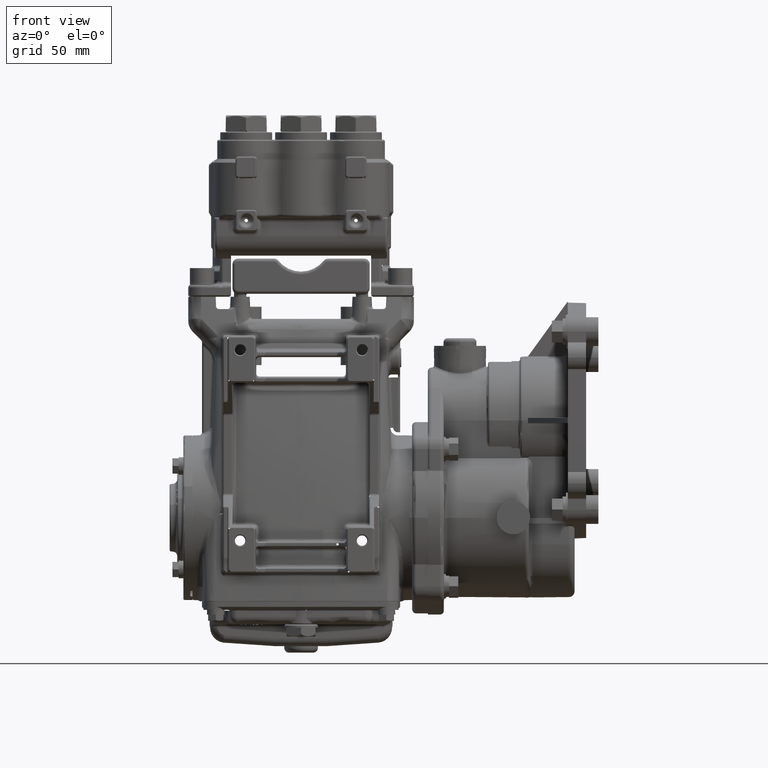
[diagram: clean part render]
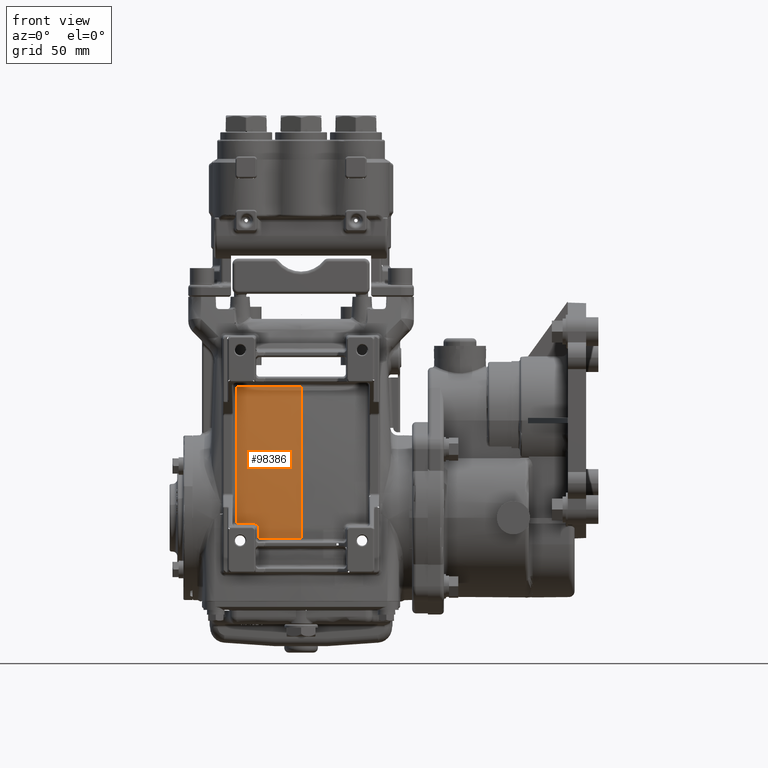
[diagram: same view with one face highlighted and labeled with its STEP entity id]
A machine part, front view. The second image highlights one B-rep face of the part: STEP entity #98386.
In plain terms, the highlighted face is a freeform B-spline surface patch.
Its self-contained STEP definition (entity closure, byte-faithful):
#421 = CARTESIAN_POINT ( 'NONE',  ( -1.438329920831149300, -2.368889522099581146, -2.165354330708661124 ) ) ;
#1658 = CARTESIAN_POINT ( 'NONE',  ( -2.913385843901003192, -1.691985680221069988, 3.127925920230766099 ) ) ;
#3141 = CARTESIAN_POINT ( 'NONE',  ( -0.2775766395478562742, -1.793953827746439966, 3.388778490940969945 ) ) ;
#5921 = CARTESIAN_POINT ( 'NONE',  ( -1.189792242981691395, -2.238631070579994109, -0.1583026045091741885 ) ) ;
#6065 = CARTESIAN_POINT ( 'NONE',  ( 2.189576524486962494, -2.325080261920545954, -2.165354330708661568 ) ) ;
#6384 = EDGE_CURVE ( 'NONE', #45389, #88729, #108775, .T. ) ;
#7301 = CARTESIAN_POINT ( 'NONE',  ( 2.279253307875170886, -1.782954428840536565, 3.127925920230772761 ) ) ;
#7557 = ORIENTED_EDGE ( 'NONE', *, *, #24498, .F. ) ;
#7912 = CARTESIAN_POINT ( 'NONE',  ( -1.523571933390371225, -1.864023738764603477, 3.127925920230739010 ) ) ;
#8499 = CARTESIAN_POINT ( 'NONE',  ( 0.7520193225572906481, -2.393118508680737833, -2.165354330708661568 ) ) ;
#9092 = CARTESIAN_POINT ( 'NONE',  ( 0.7686644455069936432, -2.282642455870154130, 0.4897784465330022319 ) ) ;
#9689 = CARTESIAN_POINT ( 'NONE',  ( -0.4802293617885408650, -2.293642939336622888, 0.4897784465330087822 ) ) ;
#10284 = CARTESIAN_POINT ( 'NONE',  ( -2.326410604817644057, -1.776570720899579792, 3.127925920230754109 ) ) ;
#10909 = CARTESIAN_POINT ( 'NONE',  ( -2.913385826771654141, -2.265344068576858216, -2.165354330708661124 ) ) ;
#11753 = CARTESIAN_POINT ( 'NONE',  ( -4.438784194610900819E-16, -2.306496805849697296, -0.5440526558611742391 ) ) ;
#12698 = CARTESIAN_POINT ( 'NONE',  ( -1.527915027197057851, -2.215913157812104295, -0.1499813333665312720 ) ) ;
#12725 = VERTEX_POINT ( 'NONE', #57937 ) ;
#14106 = CARTESIAN_POINT ( 'NONE',  ( 2.523490070267367269, -1.223445930611730459, 5.708661417322837828 ) ) ;
#14454 = CARTESIAN_POINT ( 'NONE',  ( -3.880358019103940263E-16, -1.793953829572055847, 3.388778491068083820 ) ) ;
#14719 = ORIENTED_EDGE ( 'NONE', *, *, #101387, .F. ) ;
#15706 = EDGE_CURVE ( 'NONE', #53317, #44997, #83028, .T. ) ;
#15954 = CARTESIAN_POINT ( 'NONE',  ( -1.084082905692057119, -2.260424564412967463, -0.3341032687350067865 ) ) ;
#16569 = CARTESIAN_POINT ( 'NONE',  ( 2.663295530942337397, -2.288034568519342837, -2.165354330708661568 ) ) ;
#16857 = CARTESIAN_POINT ( 'NONE',  ( -1.664976883656835716, -1.831649929826981715, 2.801814109386677742 ) ) ;
#17187 = CARTESIAN_POINT ( 'NONE',  ( -0.7760523888099777334, -2.282663781206307085, 0.4897784465330197179 ) ) ;
#17783 = CARTESIAN_POINT ( 'NONE',  ( -0.4731394191495167378, -2.398237061164401940, -2.165354330708661568 ) ) ;
#18385 = CARTESIAN_POINT ( 'NONE',  ( -1.964095400574094485, -1.820132787096655713, 3.127925920230754109 ) ) ;
#18991 = CARTESIAN_POINT ( 'NONE',  ( -0.2386529819870311930, -2.400899943846322770, -2.165354330708661568 ) ) ;
#19595 = CARTESIAN_POINT ( 'NONE',  ( -0.7593239362273180859, -2.393134938270132572, -2.165354330708661568 ) ) ;
#19842 = CARTESIAN_POINT ( 'NONE',  ( -1.084498845193367922, -2.278379151644223111, -0.5438560755862406060 ) ) ;
#24498 = EDGE_CURVE ( 'NONE', #64485, #45389, #38413, .T. ) ;
#25077 = CARTESIAN_POINT ( 'NONE',  ( -1.099710183924679008, -2.250997816146372177, -0.2380024238543103632 ) ) ;
#25215 = CARTESIAN_POINT ( 'NONE',  ( 1.648668314213679542, -2.215500870424770952, 0.4897784465330115022 ) ) ;
#25815 = CARTESIAN_POINT ( 'NONE',  ( 2.414281635307335083, -2.308400903803342619, -2.165354330708661568 ) ) ;
#26290 = CARTESIAN_POINT ( 'NONE',  ( -1.240444894278595944, -2.234850677969940413, -0.1501769756821681734 ) ) ;
#26428 = CARTESIAN_POINT ( 'NONE',  ( -2.476352911878942020, -2.114609130722289176, 0.4897784465330224379 ) ) ;
#27044 = CARTESIAN_POINT ( 'NONE',  ( 0.4056649939589591081, -1.297898323476696980, 5.708661417322884901 ) ) ;
#27641 = CARTESIAN_POINT ( 'NONE',  ( -0.4873200862093268193, -1.924545779200158346, 3.127925920230743451 ) ) ;
#28246 = CARTESIAN_POINT ( 'NONE',  ( 1.062078202322136677, -2.384053432892072166, -2.165354330708661568 ) ) ;
#28875 = CARTESIAN_POINT ( 'NONE',  ( 0.7853088048963520196, -1.913828282296069494, 3.127925920230730128 ) ) ;
#30683 = CARTESIAN_POINT ( 'NONE',  ( -2.913385826771652809, -1.197969208711458178, 5.708661417322836940 ) ) ;
#32660 = CARTESIAN_POINT ( 'NONE',  ( 2.037265628463426737, -2.172062645620671084, 0.4897784465330257131 ) ) ;
#33262 = CARTESIAN_POINT ( 'NONE',  ( 1.345329668388606015, -2.372960332906651093, -2.165354330708661568 ) ) ;
#33732 = CARTESIAN_POINT ( 'NONE',  ( -1.219837589830072178, -2.236194069783405070, -0.1512179920518048892 ) ) ;
#34495 = CARTESIAN_POINT ( 'NONE',  ( -1.084188063796198698, -2.265038599171059541, -0.3869418781655847295 ) ) ;
#34624 = CARTESIAN_POINT ( 'NONE',  ( 4.617795276269186160E-16, -2.280336022690061970, -0.2144450474789922623 ) ) ;
#35727 = CARTESIAN_POINT ( 'NONE',  ( -1.648708095812247754, -2.358238290425402450, -2.165354330708661124 ) ) ;
#35892 = B_SPLINE_CURVE_WITH_KNOTS ( 'NONE', 3,
 ( #120967, #45466, #73338, #120367, #93123, #25077, #101181, #43011, #54136, #80829, #64053, #44252, #118528, #5921, #63429, #33732, #71504, #26290 ),
 .UNSPECIFIED., .F., .F.,
 ( 4, 2, 2, 2, 2, 2, 2, 2, 4 ),
 ( 0.000000000000000000, 0.0007886128827416664976, 0.001577225765483332995, 0.002365838648224999601, 0.003154451530966665990, 0.003943064413708332813, 0.004731677296449999202, 0.005520290179191665592, 0.006308903061933331981 ),
 .UNSPECIFIED. ) ;
#36337 = CARTESIAN_POINT ( 'NONE',  ( -1.742463560137305301, -1.843263351871661904, 3.127925920230746559 ) ) ;
#36955 = CARTESIAN_POINT ( 'NONE',  ( 0.4014957656440683587, -1.927885586440233778, 3.127925920230790080 ) ) ;
#37555 = CARTESIAN_POINT ( 'NONE',  ( -1.161614335099258266, -1.892574789840514082, 3.127925920230770540 ) ) ;
#38168 = CARTESIAN_POINT ( 'NONE',  ( -1.915486056463429509, -2.186527716124487153, 0.4897784465330153325 ) ) ;
#38413 = B_SPLINE_CURVE_WITH_KNOTS ( 'NONE', 3,
 ( #64491, #44068, #122004, #93557, #16857, #45894 ),
 .UNSPECIFIED., .F., .F.,
 ( 4, 2, 4 ),
 ( 0.000000000000000000, 0.04535818248946323072, 0.09071636497892646145 ),
 .UNSPECIFIED. ) ;
#39369 = CARTESIAN_POINT ( 'NONE',  ( -2.729947521028413426, -1.210496205736398601, 5.708661417322848486 ) ) ;
#40487 = B_SPLINE_CURVE_WITH_KNOTS ( 'NONE', 3,
 ( #43766, #81588, #64200, #34495, #110000, #15954, #82199 ),
 .UNSPECIFIED., .F., .F.,
 ( 4, 3, 4 ),
 ( 1.734723475976807094E-18, 0.004000006667516224981, 0.006020819402372753343 ),
 .UNSPECIFIED. ) ;
#40601 = CARTESIAN_POINT ( 'NONE',  ( -2.848460234453432882, -2.059014184365170586, 0.4897784465330218828 ) ) ;
#41638 = CARTESIAN_POINT ( 'NONE',  ( -1.663672434191497240, -1.730195569268732747, 3.388363233297321475 ) ) ;
#42472 = ORIENTED_EDGE ( 'NONE', *, *, #84805, .F. ) ;
#42561 = CARTESIAN_POINT ( 'NONE',  ( 1.895214259565355164, -1.827571154474286530, 3.127925920230762102 ) ) ;
#42671 = VERTEX_POINT ( 'NONE', #109553 ) ;
#43011 = CARTESIAN_POINT ( 'NONE',  ( -1.115924110286393711, -2.247725094233928633, -0.2116756261339118872 ) ) ;
#43161 = CARTESIAN_POINT ( 'NONE',  ( 2.841641326625985009, -1.202961639721772391, 5.708661417322835163 ) ) ;
#43760 = CARTESIAN_POINT ( 'NONE',  ( 2.324091733874597221, -1.235065584125857319, 5.708661417322855591 ) ) ;
#43766 = CARTESIAN_POINT ( 'NONE',  ( -1.084498845193367922, -2.278379151644223111, -0.5438560755862406060 ) ) ;
#44068 = CARTESIAN_POINT ( 'NONE',  ( -1.670161274976123655, -2.147400697531644642, 0.4426558265975095718 ) ) ;
#44252 = CARTESIAN_POINT ( 'NONE',  ( -1.161814723588219911, -2.241433458655237132, -0.1711033893030866615 ) ) ;
#44997 = VERTEX_POINT ( 'NONE', #117899 ) ;
#45389 = VERTEX_POINT ( 'NONE', #41638 ) ;
#45466 = CARTESIAN_POINT ( 'NONE',  ( -1.084009473194327500, -2.257160827383280388, -0.2973159269254638248 ) ) ;
#45609 = CARTESIAN_POINT ( 'NONE',  ( 1.464488406949914445, -1.274012937168635062, 5.708661417322844045 ) ) ;
#45894 = CARTESIAN_POINT ( 'NONE',  ( -1.663672434191497240, -1.730195569268732747, 3.388363233297321475 ) ) ;
#46211 = CARTESIAN_POINT ( 'NONE',  ( -0.8095103919857099539, -1.292140362101247275, 5.708661417322844045 ) ) ;
#46805 = CARTESIAN_POINT ( 'NONE',  ( -1.192739666030864010, -1.282981708238520646, 5.708661417322852927 ) ) ;
#47412 = CARTESIAN_POINT ( 'NONE',  ( -0.7927816049644672569, -1.913850617605292292, 3.127925920230765211 ) ) ;
#48646 = CARTESIAN_POINT ( 'NONE',  ( -2.686370785910845438, -2.084068835673706488, 0.4897784465330251580 ) ) ;
#49846 = CARTESIAN_POINT ( 'NONE',  ( -2.862114397419989853, -1.201536995417320064, 5.708661417322835163 ) ) ;
#50739 = ORIENTED_EDGE ( 'NONE', *, *, #6384, .F. ) ;
#51342 = EDGE_LOOP ( 'NONE', ( #7557, #14719, #85046, #42472, #64769, #56698, #50739 ) ) ;
#51828 = CARTESIAN_POINT ( 'NONE',  ( 1.798349607840901365, -2.349958156103969742, -2.165354330708661568 ) ) ;
#52445 = CARTESIAN_POINT ( 'NONE',  ( 2.913385826771640374, -2.265344068576862213, -2.165354330708661568 ) ) ;
#53054 = FACE_OUTER_BOUND ( 'NONE', #51342, .T. ) ;
#53317 = VERTEX_POINT ( 'NONE', #116829 ) ;
#54136 = CARTESIAN_POINT ( 'NONE',  ( -1.122377073161225702, -2.246647239450680900, -0.2037528214286147277 ) ) ;
#54888 = CARTESIAN_POINT ( 'NONE',  ( -1.866877324122247384, -2.345940473350990541, -2.165354330708661124 ) ) ;
#55483 = CARTESIAN_POINT ( 'NONE',  ( -2.012704400865600096, -1.251118121441595177, 5.708661417322824505 ) ) ;
#55609 = CARTESIAN_POINT ( 'NONE',  ( -3.880358019103940263E-16, -1.793953829572055847, 3.388778491068083820 ) ) ;
#56096 = CARTESIAN_POINT ( 'NONE',  ( -1.695585503688048057, -2.210467917730779330, 0.4897784465330109471 ) ) ;
#56698 = ORIENTED_EDGE ( 'NONE', *, *, #56840, .F. ) ;
#56703 = CARTESIAN_POINT ( 'NONE',  ( 1.150346110494639085, -1.283976514928853341, 5.708661417322789866 ) ) ;
#56840 = EDGE_CURVE ( 'NONE', #88729, #53317, #114064, .T. ) ;
#57296 = CARTESIAN_POINT ( 'NONE',  ( -0.1019719231317475217, -1.931427949591510096, 3.127925920230758550 ) ) ;
#57937 = CARTESIAN_POINT ( 'NONE',  ( -1.240444894278595944, -2.234850677969940413, -0.1501769756821681734 ) ) ;
#60313 = CARTESIAN_POINT ( 'NONE',  ( -1.240444894278595944, -2.234850677969940413, -0.1501769756821681734 ) ) ;
#61102 = CARTESIAN_POINT ( 'NONE',  ( 2.234415192802542194, -2.147607685230842556, 0.4897784465330246584 ) ) ;
#62356 = CARTESIAN_POINT ( 'NONE',  ( 2.706392384829026998, -1.723957603235172220, 3.127925920230758550 ) ) ;
#62962 = CARTESIAN_POINT ( 'NONE',  ( 1.694981807724703637, -1.848142482010726173, 3.127925920230747892 ) ) ;
#63429 = CARTESIAN_POINT ( 'NONE',  ( -1.199760974019113746, -2.237762477949927220, -0.1552527717035294685 ) ) ;
#63710 = CARTESIAN_POINT ( 'NONE',  ( -4.438784194610900819E-16, -2.306496805849697296, -0.5440526558611742391 ) ) ;
#64053 = CARTESIAN_POINT ( 'NONE',  ( -1.144808578580310376, -2.243454319908962713, -0.1825626556147575130 ) ) ;
#64194 = CARTESIAN_POINT ( 'NONE',  ( -2.511391663655031969, -1.752002329188381724, 3.127925920230767431 ) ) ;
#64200 = CARTESIAN_POINT ( 'NONE',  ( -1.084292040675105540, -2.269580977062863880, -0.4392384004682781118 ) ) ;
#64485 = VERTEX_POINT ( 'NONE', #115845 ) ;
#64491 = CARTESIAN_POINT ( 'NONE',  ( -1.671499988180573437, -2.204385450591111351, -0.1498612659050825024 ) ) ;
#64769 = ORIENTED_EDGE ( 'NONE', *, *, #15706, .F. ) ;
#64815 = CARTESIAN_POINT ( 'NONE',  ( 0.1450234440065840680, -2.300768595909192804, 0.4897784465330164427 ) ) ;
#65176 = B_SPLINE_CURVE_WITH_KNOTS ( 'NONE', 3,
 ( #60313, #97478, #12698, #106160 ),
 .UNSPECIFIED., .F., .F.,
 ( 4, 4 ),
 ( 6.938893903907228378E-18, 0.01097631794368908453 ),
 .UNSPECIFIED. ) ;
#65413 = CARTESIAN_POINT ( 'NONE',  ( -1.566192897389181660, -1.270407001257441548, 5.708661417322804965 ) ) ;
#66011 = CARTESIAN_POINT ( 'NONE',  ( 0.3973269798802264163, -2.297068369690841383, 0.4897784465330322634 ) ) ;
#66625 = CARTESIAN_POINT ( 'NONE',  ( -0.1019934165441795937, -2.300768595909192804, 0.4897784465330164427 ) ) ;
#69664 = CARTESIAN_POINT ( 'NONE',  ( -2.708159283295321185, -1.723791484228669901, 3.127925920230772761 ) ) ;
#70424 = CARTESIAN_POINT ( 'NONE',  ( 2.450684691601668241, -2.118214908375335881, 0.4897784465330197179 ) ) ;
#70541 = CARTESIAN_POINT ( 'NONE',  ( -1.663672434191497240, -1.730195569268732747, 3.388363233297321475 ) ) ;
#71148 = CARTESIAN_POINT ( 'NONE',  ( -3.880358019103940263E-16, -1.793953829572055847, 3.388778491068083820 ) ) ;
#71504 = CARTESIAN_POINT ( 'NONE',  ( -1.230050119412569920, -2.235483626887897035, -0.1501834840828506212 ) ) ;
#72264 = CARTESIAN_POINT ( 'NONE',  ( 2.132997294791505460, -1.245100427256945474, 5.708661417322859144 ) ) ;
#72873 = CARTESIAN_POINT ( 'NONE',  ( 2.913385809642300650, -1.691985680221144150, 3.127925920230762102 ) ) ;
#73338 = CARTESIAN_POINT ( 'NONE',  ( -1.084999455407734015, -2.256193883383995846, -0.2870588723600730474 ) ) ;
#73480 = CARTESIAN_POINT ( 'NONE',  ( -2.441314665332592337, -2.306279735125314811, -2.165354330708661124 ) ) ;
#73615 = CARTESIAN_POINT ( 'NONE',  ( 4.429618779532718446E-16, -2.010167427803502438, 2.084183344497465118 ) ) ;
#74089 = CARTESIAN_POINT ( 'NONE',  ( -2.369125755900590491, -1.232386614232148236, 5.708661417322822729 ) ) ;
#74698 = CARTESIAN_POINT ( 'NONE',  ( 0.1449627675236093149, -1.299212598425193654, 5.708661417322835163 ) ) ;
#75308 = CARTESIAN_POINT ( 'NONE',  ( -2.240980235268056564, -2.321187910974374269, -2.165354330708661124 ) ) ;
#75921 = CARTESIAN_POINT ( 'NONE',  ( -2.131484495458455086, -1.801026039677051660, 3.127925920230756329 ) ) ;
#77130 = CARTESIAN_POINT ( 'NONE',  ( -2.841633460699814151, -2.272069094341539142, -2.165354330708661124 ) ) ;
#78381 = CARTESIAN_POINT ( 'NONE',  ( -2.913385628152181717, -2.048762232609148803, 0.4897784465330224379 ) ) ;
#79242 = CARTESIAN_POINT ( 'NONE',  ( -0.5550348168314169772, -1.788257067635133257, 3.388743369700574881 ) ) ;
#80363 = CARTESIAN_POINT ( 'NONE',  ( 1.943646624093664954, -1.254362676313991454, 5.708661417322839604 ) ) ;
#80829 = CARTESIAN_POINT ( 'NONE',  ( -1.136770881183574611, -2.244517018020598886, -0.1892222247075050490 ) ) ;
#81588 = CARTESIAN_POINT ( 'NONE',  ( -1.084395628949245571, -2.274027808519377469, -0.4915433102944287147 ) ) ;
#81715 = CARTESIAN_POINT ( 'NONE',  ( -1.729833203888251239E-16, -2.057036775566738918, 1.756788232823439211 ) ) ;
#82199 = CARTESIAN_POINT ( 'NONE',  ( -1.084030175641961691, -2.258080956032562980, -0.3076871936120910700 ) ) ;
#82807 = CARTESIAN_POINT ( 'NONE',  ( 1.091501189288766271, -2.263308735351801104, 0.4897784465330011217 ) ) ;
#83028 = B_SPLINE_CURVE_WITH_KNOTS ( 'NONE', 3,
 ( #11753, #113902, #114513, #19842 ),
 .UNSPECIFIED., .F., .F.,
 ( 4, 4 ),
 ( 1.914418252958704509E-17, 0.02755972158727674343 ),
 .UNSPECIFIED. ) ;
#83410 = CARTESIAN_POINT ( 'NONE',  ( -1.099363582922382898, -2.382977130700381085, -2.165354330708661124 ) ) ;
#84013 = CARTESIAN_POINT ( 'NONE',  ( 1.120923444174017236, -1.894876309026141348, 3.127925920230727019 ) ) ;
#84609 = CARTESIAN_POINT ( 'NONE',  ( 0.3931574066697895442, -2.399831511276513840, -2.165354330708661568 ) ) ;
#84805 = EDGE_CURVE ( 'NONE', #44997, #42671, #40487, .T. ) ;
#85046 = ORIENTED_EDGE ( 'NONE', *, *, #85061, .F. ) ;
#85061 = EDGE_CURVE ( 'NONE', #42671, #12725, #35892, .T. ) ;
#85203 = CARTESIAN_POINT ( 'NONE',  ( -1.130488594888034770, -2.260970933480431988, 0.4897784465330229930 ) ) ;
#88729 = VERTEX_POINT ( 'NONE', #14454 ) ;
#89109 = CARTESIAN_POINT ( 'NONE',  ( -1.109740814995540781, -1.766747696196211859, 3.388606815657019933 ) ) ;
#90829 = CARTESIAN_POINT ( 'NONE',  ( 2.913386025391116796, -2.048762232609160350, 0.4897784465330197179 ) ) ;
#91576 = CARTESIAN_POINT ( 'NONE',  ( 4.358330601197656172E-16, -1.853113028278692065, 3.063643956405773583 ) ) ;
#92071 = CARTESIAN_POINT ( 'NONE',  ( 2.913385826771655474, -1.197969208711458178, 5.708661417322835163 ) ) ;
#92672 = CARTESIAN_POINT ( 'NONE',  ( -0.1019499836553658945, -1.299212598425201870, 5.708661417322835163 ) ) ;
#93123 = CARTESIAN_POINT ( 'NONE',  ( -1.091960265938938246, -2.253119158052579785, -0.2568951499013944484 ) ) ;
#93267 = CARTESIAN_POINT ( 'NONE',  ( 1.385049581091524207, -2.240167768303173546, 0.4897784465330202730 ) ) ;
#93557 = CARTESIAN_POINT ( 'NONE',  ( -1.666263864281609886, -1.921684427565186759, 2.213638218249973200 ) ) ;
#93866 = B_SPLINE_SURFACE_WITH_KNOTS ( 'NONE', 3, 3, ( 
 ( #52445, #90829, #72873, #92071 ),
 ( #109377, #101321, #110608, #43161 ),
 ( #16569, #117449, #62356, #100112 ),
 ( #25815, #70424, #98874, #14106 ),
 ( #6065, #61102, #7301, #43760 ),
 ( #108762, #32660, #119293, #72264 ),
 ( #51828, #109995, #42561, #80363 ),
 ( #118055, #25215, #62962, #100716 ),
 ( #33262, #93267, #113657, #45609 ),
 ( #28246, #82807, #84013, #56703 ),
 ( #8499, #9092, #28875, #121727 ),
 ( #84609, #66011, #36955, #27044 ),
 ( #120504, #64815, #103747, #74698 ),
 ( #113037, #66625, #57296, #92672 ),
 ( #18991, #112436, #102550, #94459 ),
 ( #17783, #9689, #27641, #104356 ),
 ( #19595, #17187, #47412, #46211 ),
 ( #83410, #85203, #37555, #46805 ),
 ( #421, #111212, #7912, #65413 ),
 ( #35727, #56096, #36337, #103136 ),
 ( #54888, #38168, #18385, #55483 ),
 ( #93876, #95069, #75921, #122319 ),
 ( #75308, #121116, #10284, #74089 ),
 ( #73480, #26428, #64194, #101942 ),
 ( #111827, #48646, #69664, #39369 ),
 ( #77130, #40601, #96289, #49846 ),
 ( #10909, #78381, #1658, #30683 ) ),
 .UNSPECIFIED., .F., .F., .F.,
 ( 4, 1, 1, 1, 1, 1, 1, 1, 1, 1, 1, 2, 1, 1, 1, 1, 1, 1, 1, 1, 1, 1, 1, 4 ),
 ( 4, 4 ),
 ( 0.1820721574386664487, 0.1959246563835279065, 0.2035427212275890407, 0.2193976784518300027, 0.2310405802590582147, 0.2359332488469739197, 0.2508238822397266254, 0.2638475608825300855, 0.2796596398469345934, 0.2995163485322877017, 0.3173264764016465178, 0.3410360787193327248, 0.3577107850873240125, 0.3637457220820375925, 0.3805901526646463529, 0.4065920388027236543, 0.4224714650153005291, 0.4387315542144890612, 0.4421836685404009204, 0.4588536976265763512, 0.4664841599499357505, 0.4748837514135769711, 0.4901004416486962612, 0.5000000000000002220 ),
 ( 0.000000000000000000, 1.000000000000000000 ),
 .UNSPECIFIED. ) ;
#93876 = CARTESIAN_POINT ( 'NONE',  ( -2.035968259211040188, -2.335433637454240152, -2.165354330708661124 ) ) ;
#94459 = CARTESIAN_POINT ( 'NONE',  ( -0.2434275427088367916, -1.298707510032790280, 5.708661417322822729 ) ) ;
#95069 = CARTESIAN_POINT ( 'NONE',  ( -2.083726086542785794, -2.166614530041787390, 0.4897784465330164427 ) ) ;
#96289 = CARTESIAN_POINT ( 'NONE',  ( -2.855287436206087825, -1.701152819370445712, 3.127925920230766099 ) ) ;
#97478 = CARTESIAN_POINT ( 'NONE',  ( -1.384225660618530585, -2.226095713898979866, -0.1500869513334240346 ) ) ;
#97777 = CARTESIAN_POINT ( 'NONE',  ( -1.386876609546873640, -1.750932431424217173, 3.388505796847546048 ) ) ;
#98386 = ADVANCED_FACE ( 'NONE', ( #53054 ), #93866, .F. ) ;
#98874 = CARTESIAN_POINT ( 'NONE',  ( 2.487087237515684279, -1.755350102494639408, 3.127925920230762102 ) ) ;
#100112 = CARTESIAN_POINT ( 'NONE',  ( 2.727940840439589287, -1.210589729325568742, 5.708661417322833387 ) ) ;
#100716 = CARTESIAN_POINT ( 'NONE',  ( 1.741295670112182004, -1.263397575016607766, 5.708661417322819176 ) ) ;
#101181 = CARTESIAN_POINT ( 'NONE',  ( -1.104538450792835969, -2.249909094682416288, -0.2288645540813245838 ) ) ;
#101321 = CARTESIAN_POINT ( 'NONE',  ( 2.822533585408711243, -2.063108027997043958, 0.4897784465330197179 ) ) ;
#101387 = EDGE_CURVE ( 'NONE', #12725, #64485, #65176, .T. ) ;
#101456 = CARTESIAN_POINT ( 'NONE',  ( 4.458260523316134090E-16, -1.908191123398606193, 2.737698722522007078 ) ) ;
#101942 = CARTESIAN_POINT ( 'NONE',  ( -2.546430131488119031, -1.222062046991427398, 5.708661417322842269 ) ) ;
#102074 = CARTESIAN_POINT ( 'NONE',  ( -7.186473001584004550E-16, -2.250010485369872804, 0.1149634935245342354 ) ) ;
#102550 = CARTESIAN_POINT ( 'NONE',  ( -0.2418360551790647017, -1.930064199602339103, 3.127925920230748780 ) ) ;
#103136 = CARTESIAN_POINT ( 'NONE',  ( -1.789341252083286316, -1.261249471572276626, 5.708661417322813847 ) ) ;
#103747 = CARTESIAN_POINT ( 'NONE',  ( 0.1449928827331219139, -1.931427949591510096, 3.127925920230758550 ) ) ;
#104356 = CARTESIAN_POINT ( 'NONE',  ( -0.4944103712627438973, -1.296520347643934645, 5.708661417322814735 ) ) ;
#106160 = CARTESIAN_POINT ( 'NONE',  ( -1.671499988180573437, -2.204385450591111351, -0.1498612659050825024 ) ) ;
#108762 = CARTESIAN_POINT ( 'NONE',  ( 1.989399371181372889, -2.338284998638616496, -2.165354330708661568 ) ) ;
#108775 = B_SPLINE_CURVE_WITH_KNOTS ( 'NONE', 3,
 ( #70541, #97777, #89109, #79242, #3141, #71148 ),
 .UNSPECIFIED., .F., .F.,
 ( 4, 2, 4 ),
 ( 6.938893903907228378E-18, 0.02115083174250376521, 0.04230166348500752349 ),
 .UNSPECIFIED. ) ;
#109377 = CARTESIAN_POINT ( 'NONE',  ( 2.812979403157047642, -2.274754709963543675, -2.165354330708661568 ) ) ;
#109553 = CARTESIAN_POINT ( 'NONE',  ( -1.084030175641961691, -2.258080956032562980, -0.3076871936120910700 ) ) ;
#109995 = CARTESIAN_POINT ( 'NONE',  ( 1.846782245487664120, -2.194251839819475247, 0.4897784465330191628 ) ) ;
#110000 = CARTESIAN_POINT ( 'NONE',  ( -1.084135534368267484, -2.262743776373799420, -0.3605215198298847845 ) ) ;
#110608 = CARTESIAN_POINT ( 'NONE',  ( 2.832087334218518215, -1.704813401921120075, 3.127925920230760770 ) ) ;
#111212 = CARTESIAN_POINT ( 'NONE',  ( -1.480950586178898964, -2.231805334558659037, 0.4897784465330071724 ) ) ;
#111345 = CARTESIAN_POINT ( 'NONE',  ( -7.157645399727127983E-16, -2.181088388933470679, 0.7727195738630786570 ) ) ;
#111827 = CARTESIAN_POINT ( 'NONE',  ( -2.664582750533178945, -2.288033759751159746, -2.165354330708661124 ) ) ;
#112436 = CARTESIAN_POINT ( 'NONE',  ( -0.2402441229366550357, -2.299342540392105505, 0.4897784465330115022 ) ) ;
#113037 = CARTESIAN_POINT ( 'NONE',  ( -0.1020157036538342499, -2.401574803149599369, -2.165354330708661568 ) ) ;
#113657 = CARTESIAN_POINT ( 'NONE',  ( 1.424768798695139616, -1.872199753906887310, 3.127925920230765211 ) ) ;
#113902 = CARTESIAN_POINT ( 'NONE',  ( -0.3616787861395119319, -2.306496812825876486, -0.5440526561699657870 ) ) ;
#114064 = B_SPLINE_CURVE_WITH_KNOTS ( 'NONE', 3,
 ( #55609, #91576, #101456, #73615, #81715, #119418, #111345, #102074, #34624, #63710 ),
 .UNSPECIFIED., .F., .F.,
 ( 4, 2, 2, 2, 4 ),
 ( 0.06024417320094749978, 0.08542293328770995953, 0.1106016933744723985, 0.1357804534612348513, 0.1609592135479973041 ),
 .UNSPECIFIED. ) ;
#114513 = CARTESIAN_POINT ( 'NONE',  ( -0.7232950173701823138, -2.296882259659634329, -0.5439939882487848655 ) ) ;
#115845 = CARTESIAN_POINT ( 'NONE',  ( -1.671499988180573437, -2.204385450591111351, -0.1498612659050825024 ) ) ;
#116829 = CARTESIAN_POINT ( 'NONE',  ( -4.438784194610900819E-16, -2.306496805849697296, -0.5440526558611742391 ) ) ;
#117449 = CARTESIAN_POINT ( 'NONE',  ( 2.684844189044222507, -2.084204787240041767, 0.4897784465330180526 ) ) ;
#117899 = CARTESIAN_POINT ( 'NONE',  ( -1.084498845193367922, -2.278379151644223111, -0.5438560755862406060 ) ) ;
#118055 = CARTESIAN_POINT ( 'NONE',  ( 1.602354164347848275, -2.360792373919398557, -2.165354330708661568 ) ) ;
#118528 = CARTESIAN_POINT ( 'NONE',  ( -1.170809080665529578, -2.240468819262972477, -0.1662471103388179217 ) ) ;
#119293 = CARTESIAN_POINT ( 'NONE',  ( 2.085131295870258139, -1.806265684984527997, 3.127925920230774981 ) ) ;
#119418 = CARTESIAN_POINT ( 'NONE',  ( -1.758570860625543910E-16, -2.142492827023651625, 1.101084419947147230 ) ) ;
#120367 = CARTESIAN_POINT ( 'NONE',  ( -1.088983977023510352, -2.254165694445373180, -0.2667714252498789573 ) ) ;
#120504 = CARTESIAN_POINT ( 'NONE',  ( 0.1450532115828236657, -2.401574803149604254, -2.165354330708661568 ) ) ;
#120967 = CARTESIAN_POINT ( 'NONE',  ( -1.084030175641961691, -2.258080956032562980, -0.3076871936120910700 ) ) ;
#121116 = CARTESIAN_POINT ( 'NONE',  ( -2.283695148368135364, -2.140796000541713706, 0.4897784465330153325 ) ) ;
#121727 = CARTESIAN_POINT ( 'NONE',  ( 0.8019535934125021637, -1.292120820694519612, 5.708661417322794307 ) ) ;
#122004 = CARTESIAN_POINT ( 'NONE',  ( -1.668855918374694491, -2.079555208578092618, 1.034124399978609388 ) ) ;
#122319 = CARTESIAN_POINT ( 'NONE',  ( -2.179242577519481916, -1.242815352902275405, 5.708661417322825393 ) ) ;